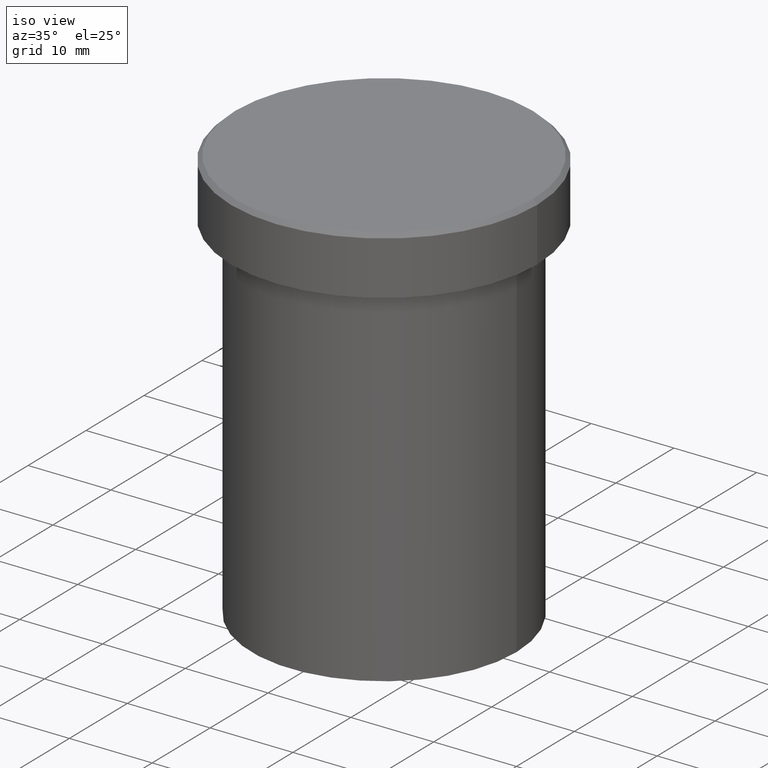
[diagram: clean part render]
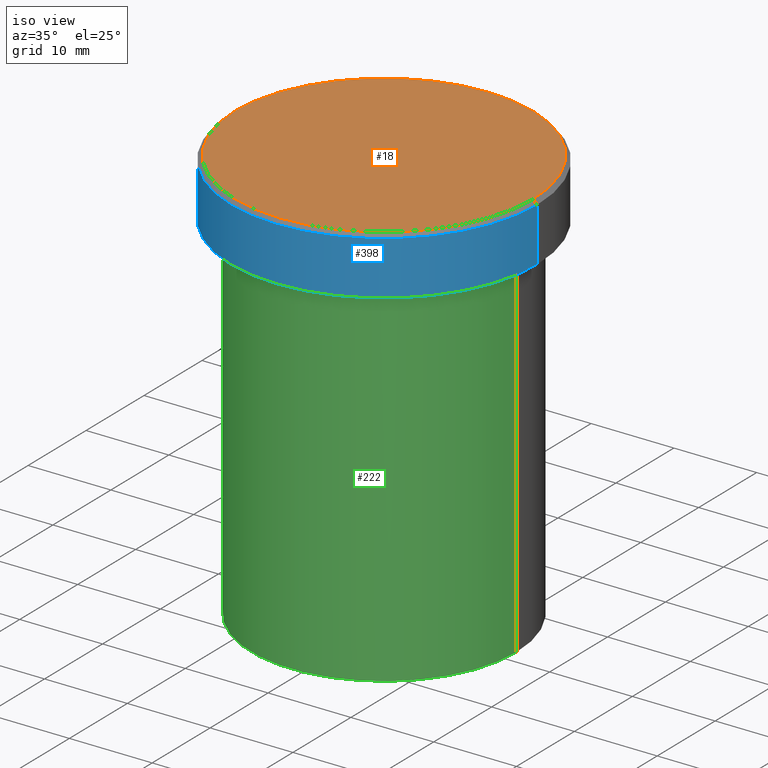
[diagram: same view with three faces highlighted in distinct colors, each labeled with its STEP entity id]
A machine part, iso view with three faces highlighted in distinct colors.
Their STEP definitions:

[orange] entity #18 — the highlighted planar face has unit normal (0, -0, 1).
#18 = ADVANCED_FACE ( 'NONE', ( #349 ), #189, .T. ) ;
#80 = DIRECTION ( 'NONE',  ( -0.000000000000000000, -0.000000000000000000, 1.000000000000000000 ) ) ;
#96 = DIRECTION ( 'NONE',  ( 0.000000000000000000, -0.000000000000000000, 1.000000000000000000 ) ) ;
#101 = CARTESIAN_POINT ( 'NONE',  ( 0.000000000000000000, 0.000000000000000000, 0.000000000000000000 ) ) ;
#106 = DIRECTION ( 'NONE',  ( 1.000000000000000000, 0.000000000000000000, 0.000000000000000000 ) ) ;
#119 = DIRECTION ( 'NONE',  ( 1.000000000000000000, 0.000000000000000000, 0.000000000000000000 ) ) ;
#130 = CARTESIAN_POINT ( 'NONE',  ( -18.00000000000000355, 0.000000000000000000, 0.000000000000000000 ) ) ;
#154 = CARTESIAN_POINT ( 'NONE',  ( 0.000000000000000000, 0.000000000000000000, 0.000000000000000000 ) ) ;
#189 = PLANE ( 'NONE',  #393 ) ;
#197 = ORIENTED_EDGE ( 'NONE', *, *, #356, .T. ) ;
#232 = EDGE_LOOP ( 'NONE', ( #197, #368 ) ) ;
#233 = CARTESIAN_POINT ( 'NONE',  ( 18.00000000000000355, 2.234980408443919609E-15, 0.000000000000000000 ) ) ;
#234 = VERTEX_POINT ( 'NONE', #130 ) ;
#251 = VERTEX_POINT ( 'NONE', #233 ) ;
#267 = CARTESIAN_POINT ( 'NONE',  ( 0.000000000000000000, 0.000000000000000000, 0.000000000000000000 ) ) ;
#269 = DIRECTION ( 'NONE',  ( -0.000000000000000000, -0.000000000000000000, 1.000000000000000000 ) ) ;
#278 = CIRCLE ( 'NONE', #327, 18.00000000000000355 ) ;
#292 = EDGE_CURVE ( 'NONE', #251, #234, #384, .T. ) ;
#304 = AXIS2_PLACEMENT_3D ( 'NONE', #101, #269, #106 ) ;
#323 = DIRECTION ( 'NONE',  ( 1.000000000000000000, 0.000000000000000000, 0.000000000000000000 ) ) ;
#327 = AXIS2_PLACEMENT_3D ( 'NONE', #267, #80, #323 ) ;
#349 = FACE_OUTER_BOUND ( 'NONE', #232, .T. ) ;
#356 = EDGE_CURVE ( 'NONE', #234, #251, #278, .T. ) ;
#368 = ORIENTED_EDGE ( 'NONE', *, *, #292, .T. ) ;
#384 = CIRCLE ( 'NONE', #304, 18.00000000000000355 ) ;
#393 = AXIS2_PLACEMENT_3D ( 'NONE', #154, #96, #119 ) ;

[blue] entity #398 — the highlighted cylindrical surface (partial cylindrical patch) has radius 18.5 mm, axis along (-0, -0, 1).
#8 = CARTESIAN_POINT ( 'NONE',  ( -18.50000000000000000, 2.265596578422603396E-15, 0.000000000000000000 ) ) ;
#33 = EDGE_LOOP ( 'NONE', ( #342, #229, #294, #43 ) ) ;
#43 = ORIENTED_EDGE ( 'NONE', *, *, #191, .T. ) ;
#46 = CYLINDRICAL_SURFACE ( 'NONE', #118, 18.50000000000000000 ) ;
#51 = VECTOR ( 'NONE', #60, 1000.000000000000000 ) ;
#57 = CARTESIAN_POINT ( 'NONE',  ( 0.000000000000000000, 0.000000000000000000, -0.5000000000000004441 ) ) ;
#58 = CARTESIAN_POINT ( 'NONE',  ( 0.000000000000000000, 0.000000000000000000, -6.999999999999998224 ) ) ;
#60 = DIRECTION ( 'NONE',  ( -0.000000000000000000, -0.000000000000000000, 1.000000000000000000 ) ) ;
#61 = EDGE_CURVE ( 'NONE', #104, #133, #336, .T. ) ;
#62 = CARTESIAN_POINT ( 'NONE',  ( 18.50000000000000000, 0.000000000000000000, -0.5000000000000004441 ) ) ;
#64 = CARTESIAN_POINT ( 'NONE',  ( 18.50000000000000000, 0.000000000000000000, 0.000000000000000000 ) ) ;
#90 = AXIS2_PLACEMENT_3D ( 'NONE', #58, #182, #315 ) ;
#104 = VERTEX_POINT ( 'NONE', #112 ) ;
#111 = CARTESIAN_POINT ( 'NONE',  ( -18.50000000000000000, 2.265596578422603396E-15, -0.5000000000000004441 ) ) ;
#112 = CARTESIAN_POINT ( 'NONE',  ( 18.50000000000000000, 0.000000000000000000, -6.999999999999998224 ) ) ;
#118 = AXIS2_PLACEMENT_3D ( 'NONE', #297, #134, #404 ) ;
#133 = VERTEX_POINT ( 'NONE', #62 ) ;
#134 = DIRECTION ( 'NONE',  ( -0.000000000000000000, -0.000000000000000000, 1.000000000000000000 ) ) ;
#147 = EDGE_CURVE ( 'NONE', #360, #247, #217, .T. ) ;
#166 = FACE_OUTER_BOUND ( 'NONE', #33, .T. ) ;
#169 = CARTESIAN_POINT ( 'NONE',  ( -18.50000000000000000, 2.265596578422603396E-15, -6.999999999999998224 ) ) ;
#171 = AXIS2_PLACEMENT_3D ( 'NONE', #57, #390, #180 ) ;
#180 = DIRECTION ( 'NONE',  ( 1.000000000000000000, 0.000000000000000000, 0.000000000000000000 ) ) ;
#182 = DIRECTION ( 'NONE',  ( -0.000000000000000000, -0.000000000000000000, 1.000000000000000000 ) ) ;
#191 = EDGE_CURVE ( 'NONE', #133, #247, #254, .T. ) ;
#192 = DIRECTION ( 'NONE',  ( -0.000000000000000000, -0.000000000000000000, 1.000000000000000000 ) ) ;
#205 = EDGE_CURVE ( 'NONE', #360, #104, #259, .T. ) ;
#217 = LINE ( 'NONE', #8, #51 ) ;
#229 = ORIENTED_EDGE ( 'NONE', *, *, #205, .T. ) ;
#247 = VERTEX_POINT ( 'NONE', #111 ) ;
#254 = CIRCLE ( 'NONE', #171, 18.50000000000000000 ) ;
#259 = CIRCLE ( 'NONE', #90, 18.50000000000000000 ) ;
#294 = ORIENTED_EDGE ( 'NONE', *, *, #61, .T. ) ;
#297 = CARTESIAN_POINT ( 'NONE',  ( 0.000000000000000000, 0.000000000000000000, 0.000000000000000000 ) ) ;
#315 = DIRECTION ( 'NONE',  ( 1.000000000000000000, 0.000000000000000000, 0.000000000000000000 ) ) ;
#336 = LINE ( 'NONE', #64, #361 ) ;
#342 = ORIENTED_EDGE ( 'NONE', *, *, #147, .F. ) ;
#360 = VERTEX_POINT ( 'NONE', #169 ) ;
#361 = VECTOR ( 'NONE', #192, 1000.000000000000000 ) ;
#390 = DIRECTION ( 'NONE',  ( 0.000000000000000000, 0.000000000000000000, -1.000000000000000000 ) ) ;
#398 = ADVANCED_FACE ( 'NONE', ( #166 ), #46, .T. ) ;
#404 = DIRECTION ( 'NONE',  ( 1.000000000000000000, 0.000000000000000000, 0.000000000000000000 ) ) ;

[green] entity #222 — the highlighted cylindrical surface (partial cylindrical patch) has radius 16 mm, axis along (-0, -0, 1).
#22 = LINE ( 'NONE', #68, #272 ) ;
#26 = EDGE_CURVE ( 'NONE', #168, #268, #202, .T. ) ;
#28 = CARTESIAN_POINT ( 'NONE',  ( 0.000000000000000000, 0.000000000000000000, -50.00000000000000000 ) ) ;
#34 = ORIENTED_EDGE ( 'NONE', *, *, #65, .T. ) ;
#49 = CARTESIAN_POINT ( 'NONE',  ( 0.000000000000000000, 0.000000000000000000, 0.000000000000000000 ) ) ;
#65 = EDGE_CURVE ( 'NONE', #193, #268, #261, .T. ) ;
#68 = CARTESIAN_POINT ( 'NONE',  ( -16.00000000000000000, 1.959434878635765131E-15, 0.000000000000000000 ) ) ;
#74 = CYLINDRICAL_SURFACE ( 'NONE', #81, 16.00000000000000000 ) ;
#81 = AXIS2_PLACEMENT_3D ( 'NONE', #49, #248, #275 ) ;
#91 = EDGE_CURVE ( 'NONE', #371, #193, #221, .T. ) ;
#94 = CARTESIAN_POINT ( 'NONE',  ( 16.00000000000000000, 0.000000000000000000, -50.00000000000000000 ) ) ;
#97 = FACE_OUTER_BOUND ( 'NONE', #264, .T. ) ;
#114 = CARTESIAN_POINT ( 'NONE',  ( -16.00000000000000000, 1.959434878635765131E-15, -8.000000000000000000 ) ) ;
#123 = DIRECTION ( 'NONE',  ( -0.000000000000000000, -0.000000000000000000, 1.000000000000000000 ) ) ;
#159 = ORIENTED_EDGE ( 'NONE', *, *, #26, .F. ) ;
#167 = VECTOR ( 'NONE', #177, 1000.000000000000000 ) ;
#168 = VERTEX_POINT ( 'NONE', #114 ) ;
#170 = ORIENTED_EDGE ( 'NONE', *, *, #394, .F. ) ;
#173 = CARTESIAN_POINT ( 'NONE',  ( -16.00000000000000000, 1.959434878635765131E-15, -50.00000000000000000 ) ) ;
#174 = CARTESIAN_POINT ( 'NONE',  ( 16.00000000000000000, 0.000000000000000000, 0.000000000000000000 ) ) ;
#177 = DIRECTION ( 'NONE',  ( -0.000000000000000000, -0.000000000000000000, 1.000000000000000000 ) ) ;
#183 = AXIS2_PLACEMENT_3D ( 'NONE', #289, #123, #260 ) ;
#193 = VERTEX_POINT ( 'NONE', #94 ) ;
#198 = DIRECTION ( 'NONE',  ( -0.000000000000000000, -0.000000000000000000, 1.000000000000000000 ) ) ;
#201 = CARTESIAN_POINT ( 'NONE',  ( 16.00000000000000000, 0.000000000000000000, -8.000000000000000000 ) ) ;
#202 = CIRCLE ( 'NONE', #183, 16.00000000000000000 ) ;
#204 = DIRECTION ( 'NONE',  ( 1.000000000000000000, 0.000000000000000000, 0.000000000000000000 ) ) ;
#221 = CIRCLE ( 'NONE', #282, 16.00000000000000000 ) ;
#222 = ADVANCED_FACE ( 'NONE', ( #97 ), #74, .T. ) ;
#248 = DIRECTION ( 'NONE',  ( -0.000000000000000000, -0.000000000000000000, 1.000000000000000000 ) ) ;
#260 = DIRECTION ( 'NONE',  ( 1.000000000000000000, 0.000000000000000000, 0.000000000000000000 ) ) ;
#261 = LINE ( 'NONE', #174, #167 ) ;
#264 = EDGE_LOOP ( 'NONE', ( #170, #408, #34, #159 ) ) ;
#268 = VERTEX_POINT ( 'NONE', #201 ) ;
#272 = VECTOR ( 'NONE', #198, 1000.000000000000000 ) ;
#275 = DIRECTION ( 'NONE',  ( 1.000000000000000000, 0.000000000000000000, 0.000000000000000000 ) ) ;
#282 = AXIS2_PLACEMENT_3D ( 'NONE', #28, #370, #204 ) ;
#289 = CARTESIAN_POINT ( 'NONE',  ( 0.000000000000000000, 0.000000000000000000, -8.000000000000000000 ) ) ;
#370 = DIRECTION ( 'NONE',  ( -0.000000000000000000, -0.000000000000000000, 1.000000000000000000 ) ) ;
#371 = VERTEX_POINT ( 'NONE', #173 ) ;
#394 = EDGE_CURVE ( 'NONE', #371, #168, #22, .T. ) ;
#408 = ORIENTED_EDGE ( 'NONE', *, *, #91, .T. ) ;